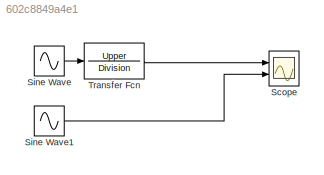
MODEL slx_602c8849a4e1
KIND model
CONFIG AbsTol = auto
CONFIG EnableMultiTasking = off
CONFIG FixedStep = auto
CONFIG MaxStep = 1e-4
CONFIG MinStep = auto
CONFIG RelTol = 1e-4
CONFIG SampleTimeConstraint = Unconstrained
CONFIG SolverName = ode113
CONFIG StartTime = 0.0
CONFIG StopTime = 10
BLOCK [Scope] Scope
  Floating = off
  NumInputPorts = 2
  Ports = [2]
  ScopeSpecificationString = Simulink.scopes.TimeScopeBlockCfg('CurrentConfiguration', extmgr.ConfigurationSet(extmgr.Configuration('Core','General UI',true),extmgr.Configuration('Core','Source UI',true),extmgr.Configuration('Sources','WiredSimulink',true),extmgr.Configuration('Visuals','Time Domain',true,'SerializedDisplays',{struct('MinYLimReal','-5583.60154','MaxYLimReal','10569.75384','YLabelReal','','MinYLimMag','  0.000...<+1670ch>
BLOCK [Sin] Sine Wave
  Amplitude = A0
  Bias = b0
  Frequency = w
  Phase = phi0
  Ports = [0, 1]
  SampleTime = 0
BLOCK [Sin] Sine Wave1
  Amplitude = A
  Bias = b
  Frequency = w
  Phase = phi
  Ports = [0, 1]
  SampleTime = 0
BLOCK [TransferFcn] Transfer Fcn
  Denominator = Division
  Numerator = Upper
LINE Sine Wave1:1 -> Scope:2
LINE Sine Wave:1 -> Transfer Fcn:1
LINE Transfer Fcn:1 -> Scope:1
